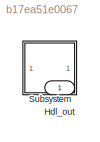
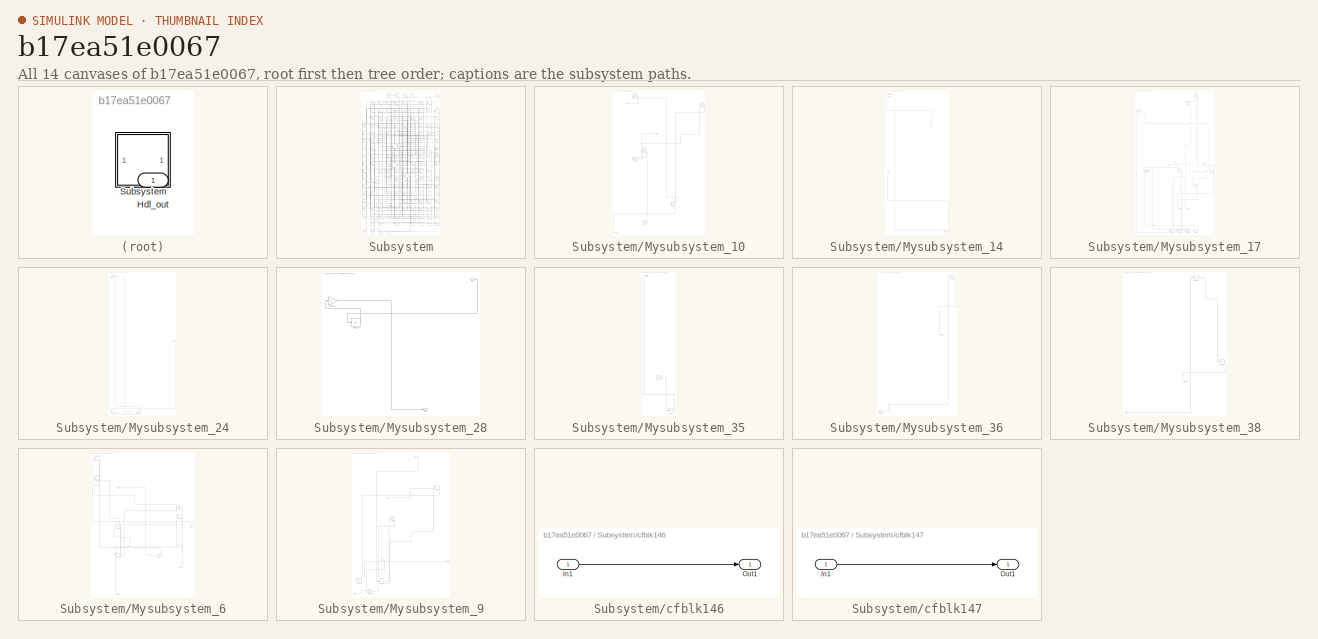
[diagram: thumbnail index - all 14 canvases of the model, root first then tree order]
MODEL slx_b17ea51e0067
KIND model
CONFIG AbsTol = auto
CONFIG EnableMultiTasking = off
CONFIG FixedStep = auto
CONFIG MaxStep = auto
CONFIG MinStep = auto
CONFIG RelTol = 1e-3
CONFIG SampleTimeConstraint = Unconstrained
CONFIG SolverName = VariableStepAuto
CONFIG StartTime = 0.0
CONFIG StopTime = 10.0
BLOCK [Outport] Hdl_out
  OutDataTypeStr = uint8
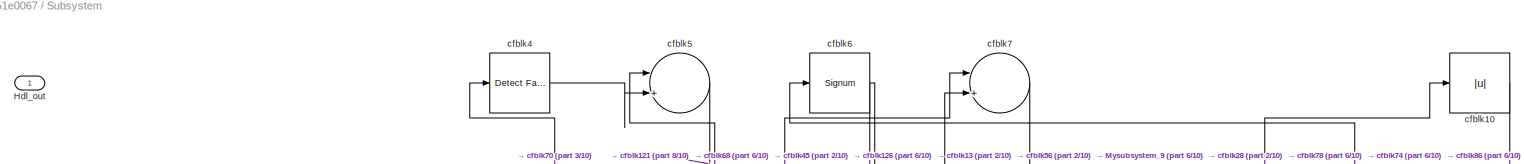
[diagram: Subsystem - part 1/10, full width, top band]
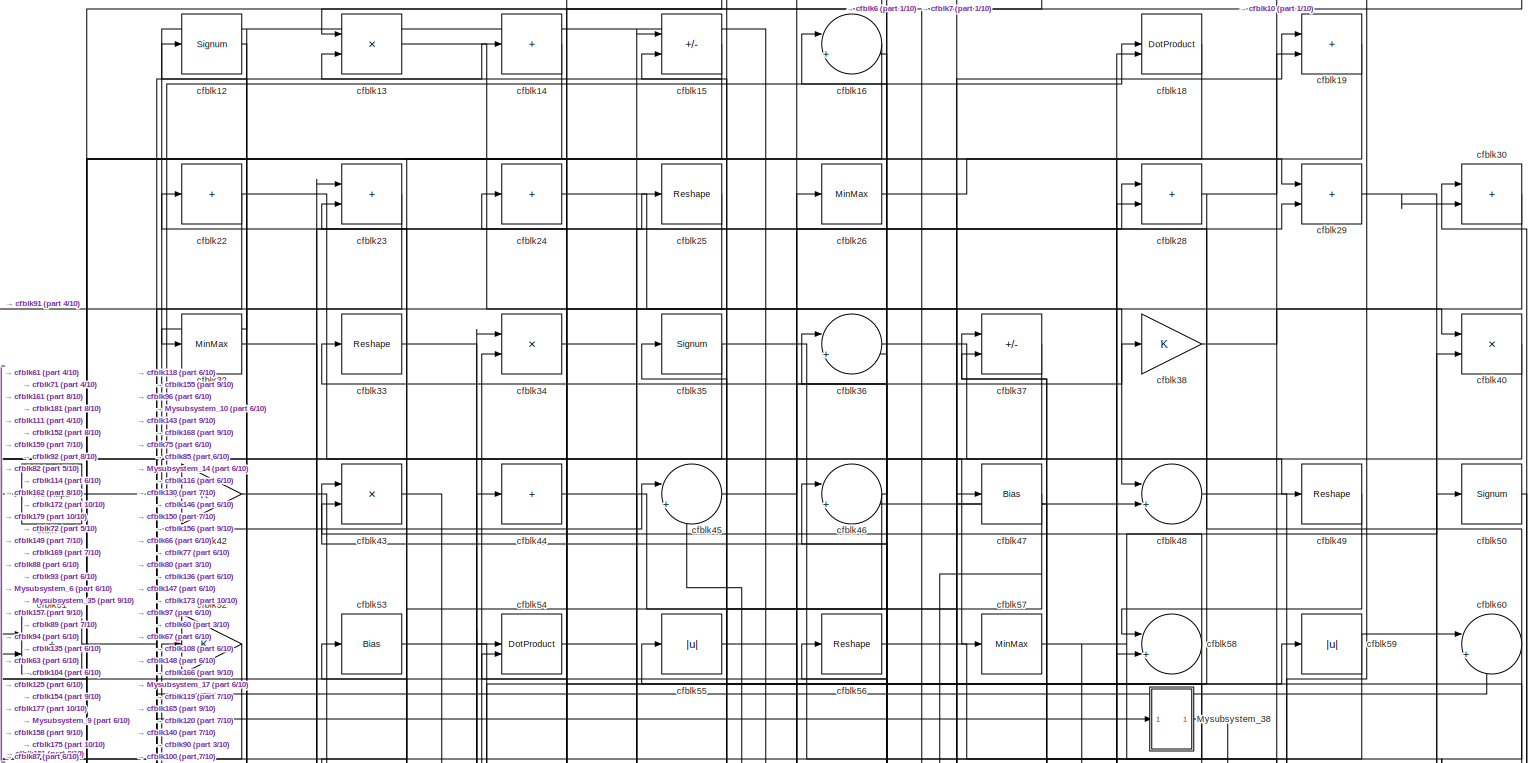
[diagram: Subsystem - part 2/10, full width, top band]
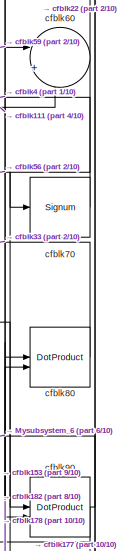
[diagram: Subsystem - part 3/10, middle right region]
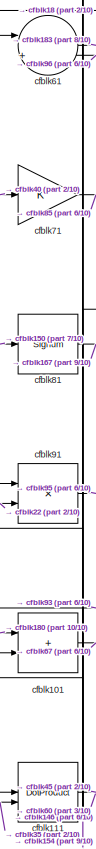
[diagram: Subsystem - part 4/10, middle left region]
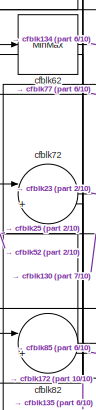
[diagram: Subsystem - part 5/10, middle left region]
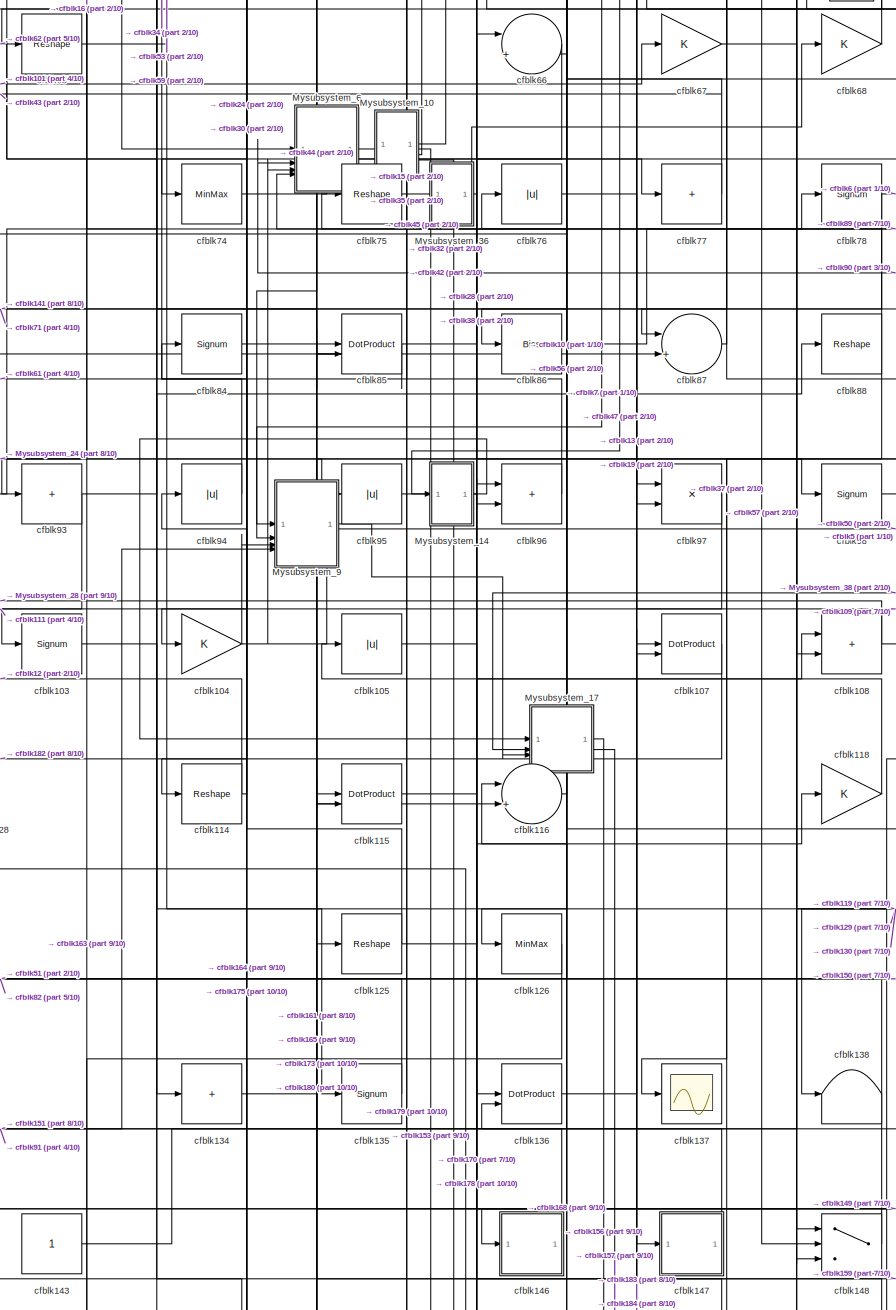
[diagram: Subsystem - part 6/10, central region]
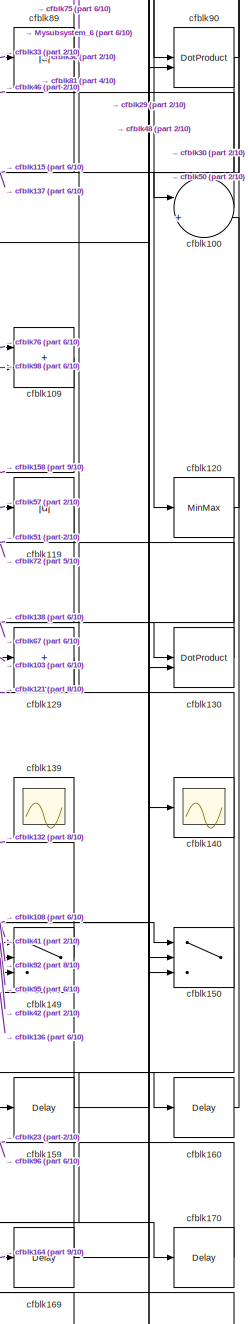
[diagram: Subsystem - part 7/10, middle right region]
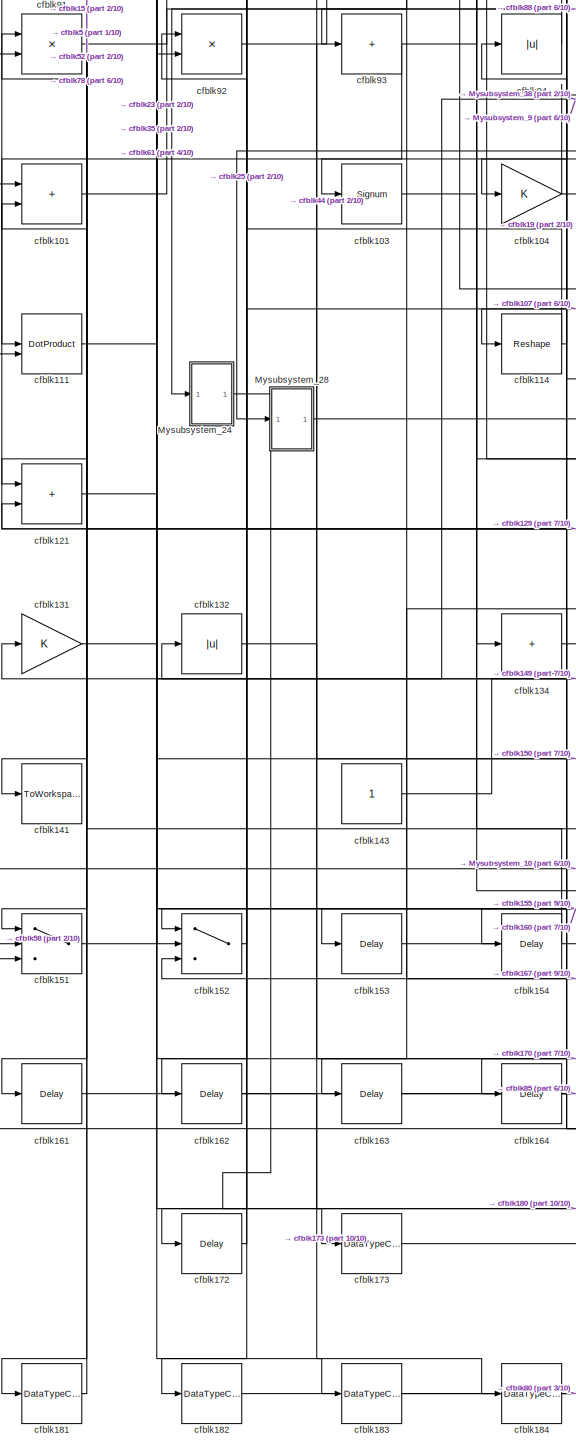
[diagram: Subsystem - part 8/10, bottom left region]
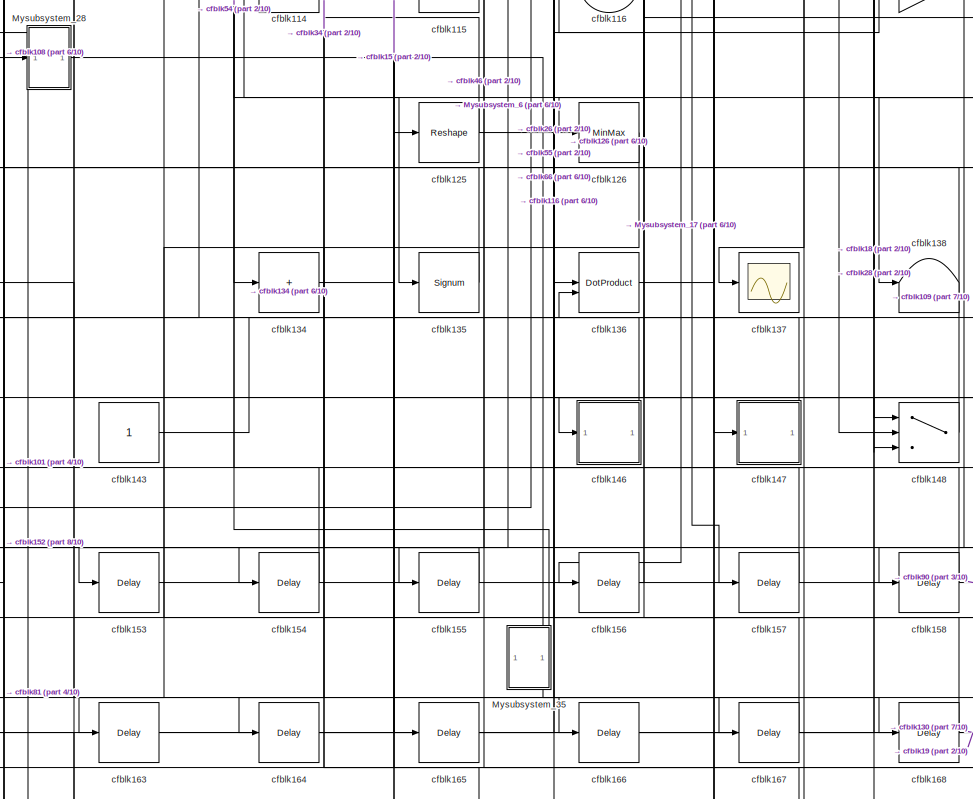
[diagram: Subsystem - part 9/10, bottom center region]
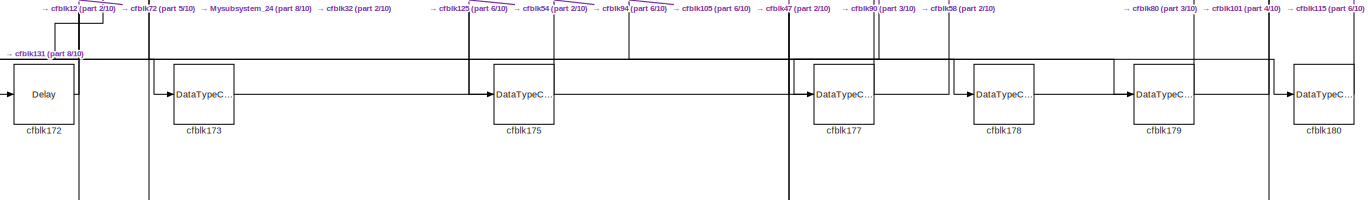
[diagram: Subsystem - part 10/10, full width, bottom band]
BLOCK [SubSystem] Subsystem
BLOCK [Outport] Subsystem/Hdl_out
  OutDataTypeStr = uint8
BLOCK [SubSystem] Subsystem/Mysubsystem_10
  RTWFcnName = Mysubsystem_10
  RTWFcnNameOpts = User specified
  RTWFileNameOpts = Use function name
  RTWSystemCode = Reusable function
  TreatAsAtomicUnit = on
BLOCK [Outport] Subsystem/Mysubsystem_10/Out2
  Port = 2
BLOCK [Outport] Subsystem/Mysubsystem_10/Out3
  Port = 3
BLOCK [Gain] Subsystem/Mysubsystem_10/cfblk127
BLOCK [Reference] Subsystem/Mysubsystem_10/cfblk144  REF=hdlsllib/Sources/Counter
Limited
  SourceBlock = hdlsllib/Sources/Counter\nLimited
  SourceType = Counter Limited
BLOCK [Reshape] Subsystem/Mysubsystem_10/cfblk20
BLOCK [Reference] Subsystem/Mysubsystem_10/cfblk3  REF=hdlsllib/Logic and Bit
Operations/Compare
To Zero
  SourceBlock = hdlsllib/Logic and Bit\nOperations/Compare\nTo Zero
  SourceType = Compare To Zero
BLOCK [Reshape] Subsystem/Mysubsystem_10/cfblk64
BLOCK [MinMax] Subsystem/Mysubsystem_10/cfblk73
BLOCK [Outport] Subsystem/Mysubsystem_10/y
BLOCK [SubSystem] Subsystem/Mysubsystem_14
  RTWFcnName = Mysubsystem_14
  RTWFcnNameOpts = User specified
  RTWFileNameOpts = Use function name
  RTWSystemCode = Reusable function
  TreatAsAtomicUnit = on
BLOCK [Outport] Subsystem/Mysubsystem_14/Out1
BLOCK [Inport] Subsystem/Mysubsystem_14/U
BLOCK [DataTypeConversion] Subsystem/Mysubsystem_14/cfblk189
  OutDataTypeStr = uint8
  RndMeth = Floor
  SaturateOnIntegerOverflow = off
BLOCK [Reference] Subsystem/Mysubsystem_14/cfblk2  REF=hdlsllib/Logic and Bit
Operations/Detect Fall
Nonpositive
  SourceBlock = hdlsllib/Logic and Bit\nOperations/Detect Fall\nNonpositive
  SourceType = Detect Fall Nonpositive
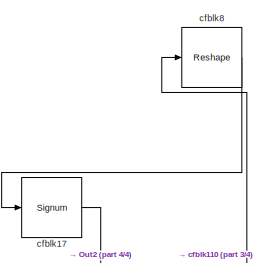
[diagram: Subsystem/Mysubsystem_17 - part 1/4, top right region]
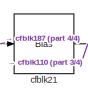
[diagram: Subsystem/Mysubsystem_17 - part 2/4, top left region]
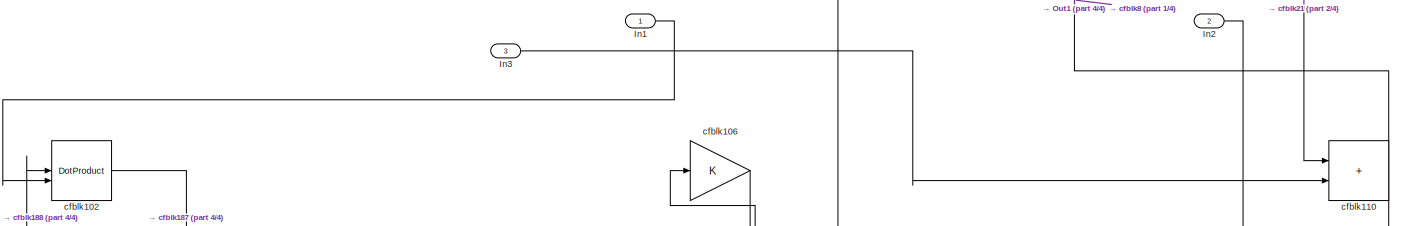
[diagram: Subsystem/Mysubsystem_17 - part 3/4, full width, middle band]
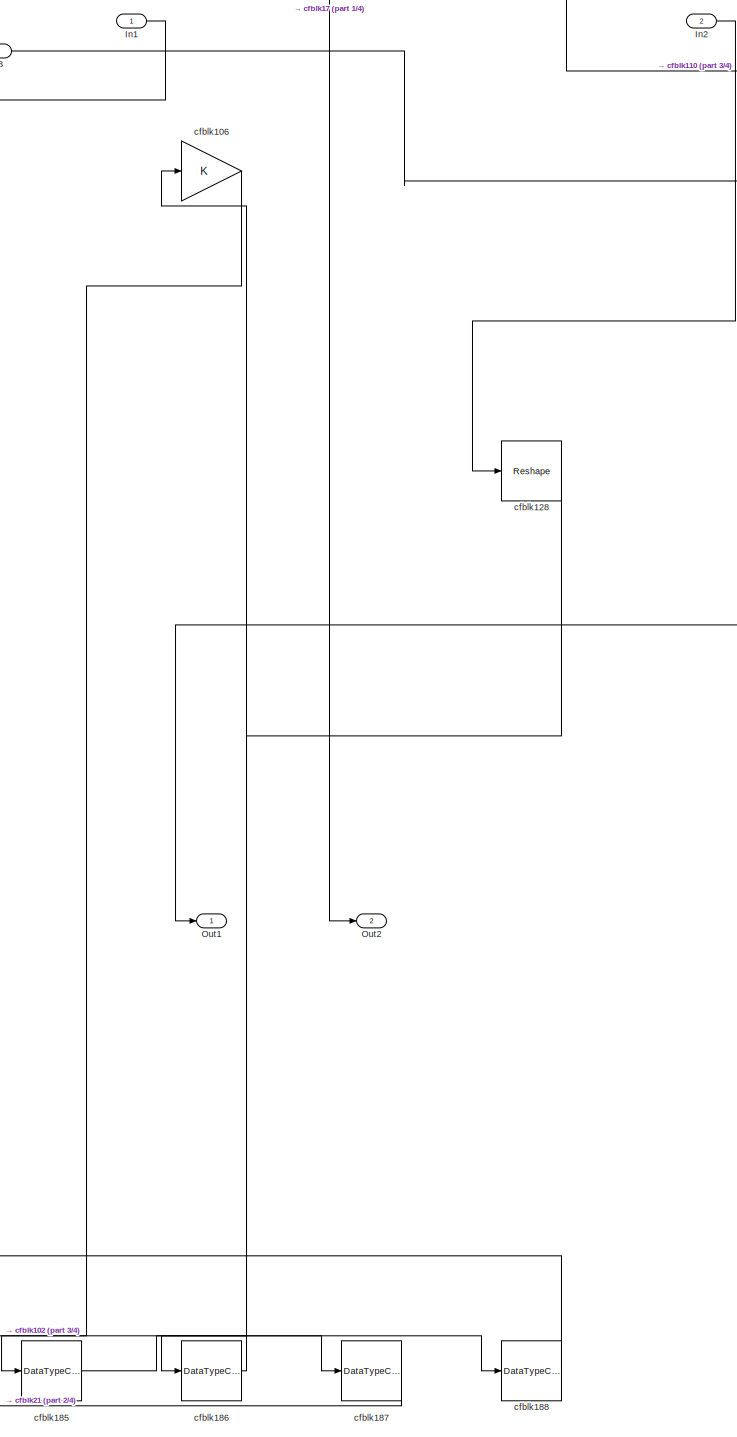
[diagram: Subsystem/Mysubsystem_17 - part 4/4, bottom center region]
BLOCK [SubSystem] Subsystem/Mysubsystem_17
  RTWFcnName = Mysubsystem_17
  RTWFcnNameOpts = User specified
  RTWFileNameOpts = Use function name
  RTWSystemCode = Reusable function
  TreatAsAtomicUnit = on
BLOCK [Inport] Subsystem/Mysubsystem_17/In1
BLOCK [Inport] Subsystem/Mysubsystem_17/In2
  Port = 2
BLOCK [Inport] Subsystem/Mysubsystem_17/In3
  Port = 3
BLOCK [Outport] Subsystem/Mysubsystem_17/Out1
BLOCK [Outport] Subsystem/Mysubsystem_17/Out2
  Port = 2
BLOCK [DotProduct] Subsystem/Mysubsystem_17/cfblk102
  OutDataTypeStr = Inherit: Inherit via internal rule
BLOCK [Gain] Subsystem/Mysubsystem_17/cfblk106
BLOCK [Sum] Subsystem/Mysubsystem_17/cfblk110
  IconShape = rectangular
BLOCK [Reshape] Subsystem/Mysubsystem_17/cfblk128
BLOCK [Signum] Subsystem/Mysubsystem_17/cfblk17
BLOCK [DataTypeConversion] Subsystem/Mysubsystem_17/cfblk185
  OutDataTypeStr = uint8
  RndMeth = Floor
  SaturateOnIntegerOverflow = off
BLOCK [DataTypeConversion] Subsystem/Mysubsystem_17/cfblk186
  OutDataTypeStr = uint8
  RndMeth = Floor
  SaturateOnIntegerOverflow = off
BLOCK [DataTypeConversion] Subsystem/Mysubsystem_17/cfblk187
  OutDataTypeStr = uint8
  RndMeth = Floor
  SaturateOnIntegerOverflow = off
BLOCK [DataTypeConversion] Subsystem/Mysubsystem_17/cfblk188
  OutDataTypeStr = uint8
  RndMeth = Floor
  SaturateOnIntegerOverflow = off
BLOCK [Bias] Subsystem/Mysubsystem_17/cfblk21
  Bias = 0.0
  SaturateOnIntegerOverflow = off
BLOCK [Reshape] Subsystem/Mysubsystem_17/cfblk8
BLOCK [SubSystem] Subsystem/Mysubsystem_24
  RTWFcnName = Mysubsystem_24
  RTWFcnNameOpts = User specified
  RTWFileNameOpts = Use function name
  RTWSystemCode = Reusable function
  TreatAsAtomicUnit = on
BLOCK [Inport] Subsystem/Mysubsystem_24/In1
BLOCK [Reference] Subsystem/Mysubsystem_24/cfblk1  REF=hdlsllib/Logic and Bit
Operations/Interval Test
  SourceBlock = hdlsllib/Logic and Bit\nOperations/Interval Test
  SourceType = Interval Test
BLOCK [Delay] Subsystem/Mysubsystem_24/cfblk171
  InputPortMap = u0
  SampleTime = 1
BLOCK [DataTypeConversion] Subsystem/Mysubsystem_24/cfblk174
  OutDataTypeStr = uint8
  RndMeth = Floor
  SaturateOnIntegerOverflow = off
BLOCK [Outport] Subsystem/Mysubsystem_24/y
BLOCK [SubSystem] Subsystem/Mysubsystem_28
  RTWFcnName = Mysubsystem_28
  RTWFcnNameOpts = User specified
  RTWFileNameOpts = Use function name
  RTWSystemCode = Reusable function
  TreatAsAtomicUnit = on
BLOCK [Inport] Subsystem/Mysubsystem_28/In1
BLOCK [Outport] Subsystem/Mysubsystem_28/Out1
BLOCK [Gain] Subsystem/Mysubsystem_28/cfblk112
BLOCK [Abs] Subsystem/Mysubsystem_28/cfblk123
  SaturateOnIntegerOverflow = off
BLOCK [SubSystem] Subsystem/Mysubsystem_35
  RTWFcnName = Mysubsystem_35
  RTWFcnNameOpts = User specified
  RTWFileNameOpts = Use function name
  RTWSystemCode = Reusable function
  TreatAsAtomicUnit = on
BLOCK [Outport] Subsystem/Mysubsystem_35/Out1
BLOCK [Reference] Subsystem/Mysubsystem_35/cfblk145  REF=hdlsllib/Sources/Counter
Free-Running
  SourceBlock = hdlsllib/Sources/Counter\nFree-Running
  SourceType = Counter Free-Running
BLOCK [DataTypeConversion] Subsystem/Mysubsystem_35/cfblk176
  OutDataTypeStr = uint8
  RndMeth = Floor
  SaturateOnIntegerOverflow = off
BLOCK [SubSystem] Subsystem/Mysubsystem_36
  RTWFcnName = Mysubsystem_36
  RTWFcnNameOpts = User specified
  RTWFileNameOpts = Use function name
  RTWSystemCode = Reusable function
  TreatAsAtomicUnit = on
BLOCK [Outport] Subsystem/Mysubsystem_36/Out1
BLOCK [Reference] Subsystem/Mysubsystem_36/cfblk142  REF=hdlsllib/Sources/Counter
Limited
  SourceBlock = hdlsllib/Sources/Counter\nLimited
  SourceType = Counter Limited
BLOCK [Abs] Subsystem/Mysubsystem_36/cfblk9
  SaturateOnIntegerOverflow = off
BLOCK [SubSystem] Subsystem/Mysubsystem_38
  RTWFcnName = Mysubsystem_38
  RTWFcnNameOpts = User specified
  RTWFileNameOpts = Use function name
  RTWSystemCode = Reusable function
  TreatAsAtomicUnit = on
BLOCK [Inport] Subsystem/Mysubsystem_38/In1
BLOCK [Outport] Subsystem/Mysubsystem_38/Out1
BLOCK [Sum] Subsystem/Mysubsystem_38/cfblk27
  IconShape = rectangular
  Inputs = +
BLOCK [Abs] Subsystem/Mysubsystem_38/cfblk99
  SaturateOnIntegerOverflow = off
BLOCK [SubSystem] Subsystem/Mysubsystem_6
  RTWFcnName = Mysubsystem_6
  RTWFcnNameOpts = User specified
  RTWFileNameOpts = Use function name
  RTWSystemCode = Reusable function
  TreatAsAtomicUnit = on
BLOCK [Inport] Subsystem/Mysubsystem_6/In1
BLOCK [Inport] Subsystem/Mysubsystem_6/In2
  Port = 2
BLOCK [Inport] Subsystem/Mysubsystem_6/In3
  Port = 3
BLOCK [Inport] Subsystem/Mysubsystem_6/In4
  Port = 4
BLOCK [Outport] Subsystem/Mysubsystem_6/Out1
BLOCK [Product] Subsystem/Mysubsystem_6/cfblk11
  Inputs = */
  RndMeth = Zero
  SaturateOnIntegerOverflow = on
BLOCK [Sum] Subsystem/Mysubsystem_6/cfblk113
  Inputs = |++
BLOCK [MinMax] Subsystem/Mysubsystem_6/cfblk117
BLOCK [Sum] Subsystem/Mysubsystem_6/cfblk31
  IconShape = rectangular
  Inputs = +-
BLOCK [Gain] Subsystem/Mysubsystem_6/cfblk69
BLOCK [Sum] Subsystem/Mysubsystem_6/cfblk79
  IconShape = rectangular
BLOCK [Abs] Subsystem/Mysubsystem_6/cfblk83
  SaturateOnIntegerOverflow = off
BLOCK [SubSystem] Subsystem/Mysubsystem_9
  RTWFcnName = Mysubsystem_9
  RTWFcnNameOpts = User specified
  RTWFileNameOpts = Use function name
  RTWSystemCode = Reusable function
  TreatAsAtomicUnit = on
BLOCK [Inport] Subsystem/Mysubsystem_9/In1
BLOCK [Inport] Subsystem/Mysubsystem_9/In2
  Port = 2
BLOCK [Inport] Subsystem/Mysubsystem_9/In3
  Port = 3
BLOCK [Inport] Subsystem/Mysubsystem_9/In4
  Port = 4
BLOCK [Outport] Subsystem/Mysubsystem_9/Out1
BLOCK [Bias] Subsystem/Mysubsystem_9/cfblk122
  Bias = 0.0
  SaturateOnIntegerOverflow = off
BLOCK [Sum] Subsystem/Mysubsystem_9/cfblk124
  IconShape = rectangular
BLOCK [Product] Subsystem/Mysubsystem_9/cfblk133
  Inputs = */
  RndMeth = Zero
  SaturateOnIntegerOverflow = on
BLOCK [Sum] Subsystem/Mysubsystem_9/cfblk39
  IconShape = rectangular
BLOCK [MinMax] Subsystem/Mysubsystem_9/cfblk65
BLOCK [Abs] Subsystem/cfblk10
  OutDataTypeStr = uint8
  SaturateOnIntegerOverflow = off
BLOCK [Sum] Subsystem/cfblk100
  Inputs = |++
  OutDataTypeStr = uint8
BLOCK [Sum] Subsystem/cfblk101
  IconShape = rectangular
  OutDataTypeStr = uint8
BLOCK [Signum] Subsystem/cfblk103
BLOCK [Gain] Subsystem/cfblk104
  OutDataTypeStr = uint8
BLOCK [Abs] Subsystem/cfblk105
  OutDataTypeStr = uint8
  SaturateOnIntegerOverflow = off
BLOCK [DotProduct] Subsystem/cfblk107
  OutDataTypeStr = uint8
BLOCK [Sum] Subsystem/cfblk108
  IconShape = rectangular
  OutDataTypeStr = uint8
BLOCK [Sum] Subsystem/cfblk109
  IconShape = rectangular
  OutDataTypeStr = uint8
BLOCK [DotProduct] Subsystem/cfblk111
  OutDataTypeStr = uint8
BLOCK [Reshape] Subsystem/cfblk114
BLOCK [DotProduct] Subsystem/cfblk115
  OutDataTypeStr = uint8
BLOCK [Sum] Subsystem/cfblk116
  Inputs = |++
  OutDataTypeStr = uint8
BLOCK [Gain] Subsystem/cfblk118
  OutDataTypeStr = uint8
BLOCK [Abs] Subsystem/cfblk119
  OutDataTypeStr = uint8
  SaturateOnIntegerOverflow = off
BLOCK [Signum] Subsystem/cfblk12
BLOCK [MinMax] Subsystem/cfblk120
  OutDataTypeStr = uint8
BLOCK [Sum] Subsystem/cfblk121
  IconShape = rectangular
  OutDataTypeStr = uint8
BLOCK [Reshape] Subsystem/cfblk125
BLOCK [MinMax] Subsystem/cfblk126
  OutDataTypeStr = uint8
BLOCK [Sum] Subsystem/cfblk129
  IconShape = rectangular
  Inputs = +
  OutDataTypeStr = uint8
BLOCK [Product] Subsystem/cfblk13
  Inputs = */
  OutDataTypeStr = uint8
  RndMeth = Zero
  SaturateOnIntegerOverflow = on
BLOCK [DotProduct] Subsystem/cfblk130
  OutDataTypeStr = uint8
BLOCK [Gain] Subsystem/cfblk131
  OutDataTypeStr = uint8
BLOCK [Abs] Subsystem/cfblk132
  OutDataTypeStr = uint8
  SaturateOnIntegerOverflow = off
BLOCK [Sum] Subsystem/cfblk134
  IconShape = rectangular
  Inputs = +
  OutDataTypeStr = uint8
BLOCK [Signum] Subsystem/cfblk135
BLOCK [DotProduct] Subsystem/cfblk136
  OutDataTypeStr = uint8
BLOCK [Scope] Subsystem/cfblk137
  Floating = off
  NumInputPorts = 1
  ScopeSpecificationString = Simulink.scopes.TimeScopeBlockCfg('CurrentConfiguration', extmgr.ConfigurationSet(extmgr.Configuration('Core','General UI',true),extmgr.Configuration('Core','Source UI',true),extmgr.Configuration('Sources','WiredSimulink',true,'DataLoggingVariableName','ScopeData1','DataLoggingSaveFormat','Array','DataLoggingLimitDataPoints',true,'DataLoggingDecimation','1'),extmgr.Configuration('Visuals','Time Do...<+868ch>
BLOCK [Terminator] Subsystem/cfblk138
BLOCK [Scope] Subsystem/cfblk139
  Floating = on
  NumInputPorts = 1
  ScopeSpecificationString = Simulink.scopes.TimeScopeBlockCfg('CurrentConfiguration', extmgr.ConfigurationSet(extmgr.Configuration('Core','General UI',true,'FigureColor',[0.156862745098039 0.156862745098039 0.156862745098039]),extmgr.Configuration('Core','Source UI',true),extmgr.Configuration('Sources','WiredSimulink',true,'DataLoggingVariableName','ScopeData2','DataLoggingSaveFormat','StructureWithTime','DataLoggingLimitDat...<+2713ch>
BLOCK [Sum] Subsystem/cfblk14
  IconShape = rectangular
  Inputs = +
  OutDataTypeStr = uint8
BLOCK [Scope] Subsystem/cfblk140
  Floating = off
  NumInputPorts = 1
  ScopeSpecificationString = Simulink.scopes.TimeScopeBlockCfg('CurrentConfiguration', extmgr.ConfigurationSet(extmgr.Configuration('Core','General UI',true),extmgr.Configuration('Core','Source UI',true),extmgr.Configuration('Sources','WiredSimulink',true,'DataLoggingSaveFormat','Array','DataLoggingLimitDataPoints',true,'DataLoggingDecimation','1'),extmgr.Configuration('Visuals','Time Domain',true,'DisplayPropertyDefaults',st...<+829ch>
BLOCK [ToWorkspace] Subsystem/cfblk141
  MaxDataPoints = inf
  SampleTime = -1
  SaveFormat = Timeseries
  VariableName = simout
BLOCK [Constant] Subsystem/cfblk143
  OutDataTypeStr = uint8
  SampleTime = -1
BLOCK [SubSystem] Subsystem/cfblk146
  LibrarySourceBlock = hdlsllib/Ports &\nSubsystems/Subsystem
BLOCK [Inport] Subsystem/cfblk146/In1
BLOCK [Outport] Subsystem/cfblk146/Out1
BLOCK [SubSystem] Subsystem/cfblk147
  LibrarySourceBlock = hdlsllib/Ports &\nSubsystems/Subsystem
BLOCK [Inport] Subsystem/cfblk147/In1
BLOCK [Outport] Subsystem/cfblk147/Out1
BLOCK [Switch] Subsystem/cfblk148
  InputSameDT = off
  OutDataTypeStr = uint8
  SaturateOnIntegerOverflow = off
BLOCK [Switch] Subsystem/cfblk149
  InputSameDT = off
  OutDataTypeStr = uint8
  SaturateOnIntegerOverflow = off
BLOCK [Sum] Subsystem/cfblk15
  IconShape = rectangular
  Inputs = +-
  OutDataTypeStr = uint8
BLOCK [Switch] Subsystem/cfblk150
  InputSameDT = off
  OutDataTypeStr = uint8
  SaturateOnIntegerOverflow = off
BLOCK [Switch] Subsystem/cfblk151
  InputSameDT = off
  OutDataTypeStr = uint8
  SaturateOnIntegerOverflow = off
BLOCK [Switch] Subsystem/cfblk152
  InputSameDT = off
  OutDataTypeStr = uint8
  SaturateOnIntegerOverflow = off
BLOCK [Delay] Subsystem/cfblk153
  InputPortMap = u0
  SampleTime = 1
BLOCK [Delay] Subsystem/cfblk154
  InputPortMap = u0
  SampleTime = 1
BLOCK [Delay] Subsystem/cfblk155
  InputPortMap = u0
  SampleTime = 1
BLOCK [Delay] Subsystem/cfblk156
  InputPortMap = u0
  SampleTime = 1
BLOCK [Delay] Subsystem/cfblk157
  InputPortMap = u0
  SampleTime = 1
BLOCK [Delay] Subsystem/cfblk158
  InputPortMap = u0
  SampleTime = 1
BLOCK [Delay] Subsystem/cfblk159
  InputPortMap = u0
  SampleTime = 1
BLOCK [Sum] Subsystem/cfblk16
  Inputs = |++
  OutDataTypeStr = uint8
BLOCK [Delay] Subsystem/cfblk160
  InputPortMap = u0
  SampleTime = 1
BLOCK [Delay] Subsystem/cfblk161
  InputPortMap = u0
  SampleTime = 1
BLOCK [Delay] Subsystem/cfblk162
  InputPortMap = u0
  SampleTime = 1
BLOCK [Delay] Subsystem/cfblk163
  InputPortMap = u0
  SampleTime = 1
BLOCK [Delay] Subsystem/cfblk164
  InputPortMap = u0
  SampleTime = 1
BLOCK [Delay] Subsystem/cfblk165
  InputPortMap = u0
  SampleTime = 1
BLOCK [Delay] Subsystem/cfblk166
  InputPortMap = u0
  SampleTime = 1
BLOCK [Delay] Subsystem/cfblk167
  InputPortMap = u0
  SampleTime = 1
BLOCK [Delay] Subsystem/cfblk168
  InputPortMap = u0
  SampleTime = 1
BLOCK [Delay] Subsystem/cfblk169
  InputPortMap = u0
  SampleTime = 1
BLOCK [Delay] Subsystem/cfblk170
  InputPortMap = u0
  SampleTime = 1
BLOCK [Delay] Subsystem/cfblk172
  InputPortMap = u0
  SampleTime = 1
BLOCK [DataTypeConversion] Subsystem/cfblk173
  OutDataTypeStr = uint8
  RndMeth = Floor
  SaturateOnIntegerOverflow = off
BLOCK [DataTypeConversion] Subsystem/cfblk175
  OutDataTypeStr = uint8
  RndMeth = Floor
  SaturateOnIntegerOverflow = off
BLOCK [DataTypeConversion] Subsystem/cfblk177
  OutDataTypeStr = uint8
  RndMeth = Floor
  SaturateOnIntegerOverflow = off
BLOCK [DataTypeConversion] Subsystem/cfblk178
  OutDataTypeStr = uint8
  RndMeth = Floor
  SaturateOnIntegerOverflow = off
BLOCK [DataTypeConversion] Subsystem/cfblk179
  OutDataTypeStr = uint8
  RndMeth = Floor
  SaturateOnIntegerOverflow = off
BLOCK [DotProduct] Subsystem/cfblk18
  OutDataTypeStr = uint8
BLOCK [DataTypeConversion] Subsystem/cfblk180
  OutDataTypeStr = uint8
  RndMeth = Floor
  SaturateOnIntegerOverflow = off
BLOCK [DataTypeConversion] Subsystem/cfblk181
  OutDataTypeStr = uint8
  RndMeth = Floor
  SaturateOnIntegerOverflow = off
BLOCK [DataTypeConversion] Subsystem/cfblk182
  OutDataTypeStr = uint8
  RndMeth = Floor
  SaturateOnIntegerOverflow = off
BLOCK [DataTypeConversion] Subsystem/cfblk183
  OutDataTypeStr = uint8
  RndMeth = Floor
  SaturateOnIntegerOverflow = off
BLOCK [DataTypeConversion] Subsystem/cfblk184
  OutDataTypeStr = uint8
  RndMeth = Floor
  SaturateOnIntegerOverflow = off
BLOCK [Sum] Subsystem/cfblk19
  IconShape = rectangular
  OutDataTypeStr = uint8
BLOCK [Sum] Subsystem/cfblk22
  IconShape = rectangular
  Inputs = +
  OutDataTypeStr = uint8
BLOCK [Sum] Subsystem/cfblk23
  IconShape = rectangular
  OutDataTypeStr = uint8
BLOCK [Sum] Subsystem/cfblk24
  IconShape = rectangular
  Inputs = +
  OutDataTypeStr = uint8
BLOCK [Reshape] Subsystem/cfblk25
BLOCK [MinMax] Subsystem/cfblk26
  OutDataTypeStr = uint8
BLOCK [Sum] Subsystem/cfblk28
  IconShape = rectangular
  OutDataTypeStr = uint8
BLOCK [Sum] Subsystem/cfblk29
  IconShape = rectangular
  OutDataTypeStr = uint8
BLOCK [Sum] Subsystem/cfblk30
  IconShape = rectangular
  OutDataTypeStr = uint8
BLOCK [MinMax] Subsystem/cfblk32
  OutDataTypeStr = uint8
BLOCK [Reshape] Subsystem/cfblk33
BLOCK [Product] Subsystem/cfblk34
  Inputs = */
  OutDataTypeStr = uint8
  RndMeth = Zero
  SaturateOnIntegerOverflow = on
BLOCK [Signum] Subsystem/cfblk35
BLOCK [Sum] Subsystem/cfblk36
  Inputs = |++
  OutDataTypeStr = uint8
BLOCK [Sum] Subsystem/cfblk37
  IconShape = rectangular
  Inputs = +-
  OutDataTypeStr = uint8
BLOCK [Gain] Subsystem/cfblk38
  OutDataTypeStr = uint8
BLOCK [Reference] Subsystem/cfblk4  REF=hdlsllib/Logic and Bit
Operations/Detect Fall
Nonpositive
  SourceBlock = hdlsllib/Logic and Bit\nOperations/Detect Fall\nNonpositive
  SourceType = Detect Fall Nonpositive
BLOCK [Product] Subsystem/cfblk40
  Inputs = */
  OutDataTypeStr = uint8
  RndMeth = Zero
  SaturateOnIntegerOverflow = on
BLOCK [Reshape] Subsystem/cfblk41
BLOCK [Gain] Subsystem/cfblk42
  OutDataTypeStr = uint8
BLOCK [Product] Subsystem/cfblk43
  Inputs = */
  OutDataTypeStr = uint8
  RndMeth = Zero
  SaturateOnIntegerOverflow = on
BLOCK [Sum] Subsystem/cfblk44
  IconShape = rectangular
  Inputs = +
  OutDataTypeStr = uint8
BLOCK [Sum] Subsystem/cfblk45
  Inputs = |++
  OutDataTypeStr = uint8
BLOCK [Sum] Subsystem/cfblk46
  Inputs = |++
  OutDataTypeStr = uint8
BLOCK [Bias] Subsystem/cfblk47
  Bias = 0.0
  SaturateOnIntegerOverflow = off
BLOCK [Sum] Subsystem/cfblk48
  Inputs = |++
  OutDataTypeStr = uint8
BLOCK [Reshape] Subsystem/cfblk49
BLOCK [Sum] Subsystem/cfblk5
  Inputs = |++
  OutDataTypeStr = uint8
BLOCK [Signum] Subsystem/cfblk50
BLOCK [Sum] Subsystem/cfblk51
  IconShape = rectangular
  OutDataTypeStr = uint8
BLOCK [Gain] Subsystem/cfblk52
  OutDataTypeStr = uint8
BLOCK [Bias] Subsystem/cfblk53
  Bias = 0.0
  SaturateOnIntegerOverflow = off
BLOCK [DotProduct] Subsystem/cfblk54
  OutDataTypeStr = uint8
BLOCK [Abs] Subsystem/cfblk55
  OutDataTypeStr = uint8
  SaturateOnIntegerOverflow = off
BLOCK [Reshape] Subsystem/cfblk56
BLOCK [MinMax] Subsystem/cfblk57
  OutDataTypeStr = uint8
BLOCK [Sum] Subsystem/cfblk58
  Inputs = |++
  OutDataTypeStr = uint8
BLOCK [Abs] Subsystem/cfblk59
  OutDataTypeStr = uint8
  SaturateOnIntegerOverflow = off
BLOCK [Signum] Subsystem/cfblk6
BLOCK [Sum] Subsystem/cfblk60
  Inputs = |++
  OutDataTypeStr = uint8
BLOCK [Sum] Subsystem/cfblk61
  Inputs = |++
  OutDataTypeStr = uint8
BLOCK [MinMax] Subsystem/cfblk62
  OutDataTypeStr = uint8
BLOCK [Reshape] Subsystem/cfblk63
BLOCK [Sum] Subsystem/cfblk66
  Inputs = |++
  OutDataTypeStr = uint8
BLOCK [Gain] Subsystem/cfblk67
  OutDataTypeStr = uint8
BLOCK [Gain] Subsystem/cfblk68
  OutDataTypeStr = uint8
BLOCK [Sum] Subsystem/cfblk7
  Inputs = |++
  OutDataTypeStr = uint8
BLOCK [Signum] Subsystem/cfblk70
BLOCK [Gain] Subsystem/cfblk71
  OutDataTypeStr = uint8
BLOCK [Sum] Subsystem/cfblk72
  Inputs = |++
  OutDataTypeStr = uint8
BLOCK [MinMax] Subsystem/cfblk74
  OutDataTypeStr = uint8
BLOCK [Reshape] Subsystem/cfblk75
BLOCK [Abs] Subsystem/cfblk76
  OutDataTypeStr = uint8
  SaturateOnIntegerOverflow = off
BLOCK [Sum] Subsystem/cfblk77
  IconShape = rectangular
  Inputs = +
  OutDataTypeStr = uint8
BLOCK [Signum] Subsystem/cfblk78
BLOCK [DotProduct] Subsystem/cfblk80
  OutDataTypeStr = uint8
BLOCK [Signum] Subsystem/cfblk81
BLOCK [Sum] Subsystem/cfblk82
  Inputs = |++
  OutDataTypeStr = uint8
BLOCK [Signum] Subsystem/cfblk84
BLOCK [DotProduct] Subsystem/cfblk85
  OutDataTypeStr = uint8
BLOCK [Bias] Subsystem/cfblk86
  Bias = 0.0
  SaturateOnIntegerOverflow = off
BLOCK [Sum] Subsystem/cfblk87
  Inputs = |++
  OutDataTypeStr = uint8
BLOCK [Reshape] Subsystem/cfblk88
BLOCK [Abs] Subsystem/cfblk89
  OutDataTypeStr = uint8
  SaturateOnIntegerOverflow = off
BLOCK [DotProduct] Subsystem/cfblk90
  OutDataTypeStr = uint8
BLOCK [Product] Subsystem/cfblk91
  Inputs = */
  OutDataTypeStr = uint8
  RndMeth = Zero
  SaturateOnIntegerOverflow = on
BLOCK [Product] Subsystem/cfblk92
  Inputs = */
  OutDataTypeStr = uint8
  RndMeth = Zero
  SaturateOnIntegerOverflow = on
BLOCK [Sum] Subsystem/cfblk93
  IconShape = rectangular
  Inputs = +
  OutDataTypeStr = uint8
BLOCK [Abs] Subsystem/cfblk94
  OutDataTypeStr = uint8
  SaturateOnIntegerOverflow = off
BLOCK [Abs] Subsystem/cfblk95
  OutDataTypeStr = uint8
  SaturateOnIntegerOverflow = off
BLOCK [Sum] Subsystem/cfblk96
  IconShape = rectangular
  OutDataTypeStr = uint8
BLOCK [Product] Subsystem/cfblk97
  Inputs = */
  OutDataTypeStr = uint8
  RndMeth = Zero
  SaturateOnIntegerOverflow = on
BLOCK [Signum] Subsystem/cfblk98
NET Subsystem/Mysubsystem_10/cfblk127:1 -> Subsystem/Mysubsystem_10/Out3:1, Subsystem/Mysubsystem_10/cfblk3:1
LINE Subsystem/Mysubsystem_10/cfblk144:1 -> Subsystem/Mysubsystem_10/cfblk64:1
LINE Subsystem/Mysubsystem_10/cfblk20:1 -> Subsystem/Mysubsystem_10/cfblk127:1
LINE Subsystem/Mysubsystem_10/cfblk3:1 -> Subsystem/Mysubsystem_10/y:1
LINE Subsystem/Mysubsystem_10/cfblk64:1 -> Subsystem/Mysubsystem_10/cfblk73:1
NET Subsystem/Mysubsystem_10/cfblk73:1 -> Subsystem/Mysubsystem_10/Out2:1, Subsystem/Mysubsystem_10/cfblk20:1
NET Subsystem/Mysubsystem_10:1 -> Subsystem/cfblk32:1, Subsystem/cfblk42:1
LINE Subsystem/Mysubsystem_10:2 -> Subsystem/cfblk45:2
LINE Subsystem/Mysubsystem_10:3 -> Subsystem/cfblk151:3
LINE Subsystem/Mysubsystem_14/U:1 -> Subsystem/Mysubsystem_14/cfblk2:1
LINE Subsystem/Mysubsystem_14/cfblk189:1 -> Subsystem/Mysubsystem_14/Out1:1
LINE Subsystem/Mysubsystem_14/cfblk2:1 -> Subsystem/Mysubsystem_14/cfblk189:1
LINE Subsystem/Mysubsystem_14:1 -> Subsystem/Mysubsystem_17:1
LINE Subsystem/Mysubsystem_17/In1:1 -> Subsystem/Mysubsystem_17/cfblk102:2
LINE Subsystem/Mysubsystem_17/In2:1 -> Subsystem/Mysubsystem_17/cfblk128:1
LINE Subsystem/Mysubsystem_17/In3:1 -> Subsystem/Mysubsystem_17/cfblk110:2
LINE Subsystem/Mysubsystem_17/cfblk102:1 -> Subsystem/Mysubsystem_17/cfblk187:1
LINE Subsystem/Mysubsystem_17/cfblk106:1 -> Subsystem/Mysubsystem_17/cfblk185:1
NET Subsystem/Mysubsystem_17/cfblk110:1 -> Subsystem/Mysubsystem_17/Out1:1, Subsystem/Mysubsystem_17/cfblk8:1
LINE Subsystem/Mysubsystem_17/cfblk128:1 -> Subsystem/Mysubsystem_17/cfblk186:1
LINE Subsystem/Mysubsystem_17/cfblk17:1 -> Subsystem/Mysubsystem_17/Out2:1
LINE Subsystem/Mysubsystem_17/cfblk185:1 -> Subsystem/Mysubsystem_17/cfblk188:1
LINE Subsystem/Mysubsystem_17/cfblk186:1 -> Subsystem/Mysubsystem_17/cfblk106:1
LINE Subsystem/Mysubsystem_17/cfblk187:1 -> Subsystem/Mysubsystem_17/cfblk21:1
LINE Subsystem/Mysubsystem_17/cfblk188:1 -> Subsystem/Mysubsystem_17/cfblk102:1
LINE Subsystem/Mysubsystem_17/cfblk21:1 -> Subsystem/Mysubsystem_17/cfblk110:1
LINE Subsystem/Mysubsystem_17/cfblk8:1 -> Subsystem/Mysubsystem_17/cfblk17:1
LINE Subsystem/Mysubsystem_17:1 -> Subsystem/cfblk156:1
LINE Subsystem/Mysubsystem_17:2 -> Subsystem/cfblk157:1
LINE Subsystem/Mysubsystem_24/In1:1 -> Subsystem/Mysubsystem_24/cfblk171:1
LINE Subsystem/Mysubsystem_24/cfblk171:1 -> Subsystem/Mysubsystem_24/cfblk174:1
LINE Subsystem/Mysubsystem_24/cfblk174:1 -> Subsystem/Mysubsystem_24/cfblk1:1
LINE Subsystem/Mysubsystem_24/cfblk1:1 -> Subsystem/Mysubsystem_24/y:1
LINE Subsystem/Mysubsystem_24:1 -> Subsystem/cfblk173:1
LINE Subsystem/Mysubsystem_28/In1:1 -> Subsystem/Mysubsystem_28/cfblk123:1
LINE Subsystem/Mysubsystem_28/cfblk112:1 -> Subsystem/Mysubsystem_28/Out1:1
LINE Subsystem/Mysubsystem_28/cfblk123:1 -> Subsystem/Mysubsystem_28/cfblk112:1
LINE Subsystem/Mysubsystem_28:1 -> Subsystem/cfblk166:1
LINE Subsystem/Mysubsystem_35/cfblk145:1 -> Subsystem/Mysubsystem_35/cfblk176:1
LINE Subsystem/Mysubsystem_35/cfblk176:1 -> Subsystem/Mysubsystem_35/Out1:1
LINE Subsystem/Mysubsystem_35:1 -> Subsystem/cfblk54:1
LINE Subsystem/Mysubsystem_36/cfblk142:1 -> Subsystem/Mysubsystem_36/cfblk9:1
LINE Subsystem/Mysubsystem_36/cfblk9:1 -> Subsystem/Mysubsystem_36/Out1:1
LINE Subsystem/Mysubsystem_36:1 -> Subsystem/cfblk68:1
LINE Subsystem/Mysubsystem_38/In1:1 -> Subsystem/Mysubsystem_38/cfblk27:1
LINE Subsystem/Mysubsystem_38/cfblk27:1 -> Subsystem/Mysubsystem_38/cfblk99:1
LINE Subsystem/Mysubsystem_38/cfblk99:1 -> Subsystem/Mysubsystem_38/Out1:1
LINE Subsystem/Mysubsystem_38:1 -> Subsystem/Mysubsystem_17:2
LINE Subsystem/Mysubsystem_6/In1:1 -> Subsystem/Mysubsystem_6/cfblk117:1
LINE Subsystem/Mysubsystem_6/In2:1 -> Subsystem/Mysubsystem_6/cfblk11:1
LINE Subsystem/Mysubsystem_6/In3:1 -> Subsystem/Mysubsystem_6/cfblk83:1
LINE Subsystem/Mysubsystem_6/In4:1 -> Subsystem/Mysubsystem_6/cfblk79:2
LINE Subsystem/Mysubsystem_6/cfblk113:1 -> Subsystem/Mysubsystem_6/cfblk69:1
LINE Subsystem/Mysubsystem_6/cfblk117:1 -> Subsystem/Mysubsystem_6/cfblk11:2
LINE Subsystem/Mysubsystem_6/cfblk11:1 -> Subsystem/Mysubsystem_6/cfblk31:1
LINE Subsystem/Mysubsystem_6/cfblk31:1 -> Subsystem/Mysubsystem_6/cfblk79:1
LINE Subsystem/Mysubsystem_6/cfblk69:1 -> Subsystem/Mysubsystem_6/Out1:1
LINE Subsystem/Mysubsystem_6/cfblk79:1 -> Subsystem/Mysubsystem_6/cfblk113:2
NET Subsystem/Mysubsystem_6/cfblk83:1 -> Subsystem/Mysubsystem_6/cfblk113:1, Subsystem/Mysubsystem_6/cfblk31:2
LINE Subsystem/Mysubsystem_6:1 -> Subsystem/cfblk153:1
LINE Subsystem/Mysubsystem_9/In1:1 -> Subsystem/Mysubsystem_9/cfblk124:2
LINE Subsystem/Mysubsystem_9/In2:1 -> Subsystem/Mysubsystem_9/cfblk39:2
LINE Subsystem/Mysubsystem_9/In3:1 -> Subsystem/Mysubsystem_9/cfblk133:2
LINE Subsystem/Mysubsystem_9/In4:1 -> Subsystem/Mysubsystem_9/cfblk133:1
LINE Subsystem/Mysubsystem_9/cfblk122:1 -> Subsystem/Mysubsystem_9/Out1:1
LINE Subsystem/Mysubsystem_9/cfblk124:1 -> Subsystem/Mysubsystem_9/cfblk39:1
LINE Subsystem/Mysubsystem_9/cfblk133:1 -> Subsystem/Mysubsystem_9/cfblk65:1
LINE Subsystem/Mysubsystem_9/cfblk39:1 -> Subsystem/Mysubsystem_9/cfblk122:1
LINE Subsystem/Mysubsystem_9/cfblk65:1 -> Subsystem/Mysubsystem_9/cfblk124:1
LINE Subsystem/Mysubsystem_9:1 -> Subsystem/Mysubsystem_17:3
LINE Subsystem/cfblk100:1 -> Subsystem/cfblk46:2
LINE Subsystem/cfblk101:1 -> Subsystem/cfblk67:1
LINE Subsystem/cfblk103:1 -> Subsystem/cfblk129:1
NET Subsystem/cfblk104:1 -> Subsystem/Mysubsystem_6:3, Subsystem/Mysubsystem_9:3, Subsystem/cfblk148:3, Subsystem/cfblk50:1
LINE Subsystem/cfblk105:1 -> Subsystem/cfblk178:1
LINE Subsystem/cfblk107:1 -> Subsystem/cfblk182:1
NET Subsystem/cfblk108:1 -> Subsystem/Mysubsystem_28:1, Subsystem/cfblk150:2
LINE Subsystem/cfblk109:1 -> Subsystem/cfblk158:1
NET Subsystem/cfblk10:1 -> Subsystem/cfblk74:1, Subsystem/cfblk86:1
NET Subsystem/cfblk111:1 -> Subsystem/cfblk45:1, Subsystem/cfblk60:2
NET Subsystem/cfblk114:1 -> Subsystem/cfblk12:1, Subsystem/cfblk84:1
LINE Subsystem/cfblk115:1 -> Subsystem/cfblk108:1
LINE Subsystem/cfblk116:1 -> Subsystem/cfblk56:1
LINE Subsystem/cfblk118:1 -> Subsystem/cfblk35:1
LINE Subsystem/cfblk119:1 -> Subsystem/cfblk138:1
NET Subsystem/cfblk120:1 -> Subsystem/cfblk149:3, Subsystem/cfblk30:1
LINE Subsystem/cfblk121:1 -> Subsystem/cfblk160:1
NET Subsystem/cfblk125:1 -> Subsystem/cfblk118:1, Subsystem/cfblk24:1
NET Subsystem/cfblk126:1 -> Subsystem/cfblk163:1, Subsystem/cfblk164:1
LINE Subsystem/cfblk129:1 -> Subsystem/cfblk121:2
LINE Subsystem/cfblk12:1 -> Subsystem/cfblk172:1
NET Subsystem/cfblk130:1 -> Subsystem/cfblk36:2, Subsystem/cfblk51:2, Subsystem/cfblk72:1
LINE Subsystem/cfblk131:1 -> Subsystem/cfblk180:1
LINE Subsystem/cfblk132:1 -> Subsystem/cfblk170:1
LINE Subsystem/cfblk134:1 -> Subsystem/cfblk165:1
LINE Subsystem/cfblk135:1 -> Subsystem/cfblk82:1
LINE Subsystem/cfblk136:1 -> Subsystem/cfblk19:1
LINE Subsystem/cfblk13:1 -> Subsystem/cfblk97:1
NET Subsystem/cfblk143:1 -> Subsystem/cfblk26:1, Subsystem/cfblk28:2
LINE Subsystem/cfblk146/In1:1 -> Subsystem/cfblk146/Out1:1
LINE Subsystem/cfblk146:1 -> Subsystem/cfblk91:1
LINE Subsystem/cfblk147/In1:1 -> Subsystem/cfblk147/Out1:1
LINE Subsystem/cfblk147:1 -> Subsystem/cfblk136:2
NET Subsystem/cfblk148:1 -> Subsystem/cfblk51:1, Subsystem/cfblk76:1
LINE Subsystem/cfblk149:1 -> Subsystem/cfblk132:1
LINE Subsystem/cfblk14:1 -> Subsystem/cfblk41:1
NET Subsystem/cfblk150:1 -> Subsystem/Mysubsystem_6:4, Subsystem/cfblk169:1, Subsystem/cfblk36:1, Subsystem/cfblk81:1
NET Subsystem/cfblk151:1 -> Subsystem/Mysubsystem_38:1, Subsystem/Mysubsystem_9:4
LINE Subsystem/cfblk152:1 -> Subsystem/cfblk92:1
LINE Subsystem/cfblk153:1 -> Subsystem/cfblk90:2
LINE Subsystem/cfblk154:1 -> Subsystem/cfblk101:2
LINE Subsystem/cfblk155:1 -> Subsystem/cfblk152:1
LINE Subsystem/cfblk156:1 -> Subsystem/cfblk46:1
LINE Subsystem/cfblk157:1 -> Subsystem/cfblk34:1
LINE Subsystem/cfblk158:1 -> Subsystem/cfblk15:1
LINE Subsystem/cfblk159:1 -> Subsystem/cfblk136:1
NET Subsystem/cfblk15:1 -> Subsystem/cfblk13:2, Subsystem/cfblk181:1
LINE Subsystem/cfblk160:1 -> Subsystem/cfblk100:2
LINE Subsystem/cfblk161:1 -> Subsystem/cfblk85:1
LINE Subsystem/cfblk162:1 -> Subsystem/cfblk184:1
LINE Subsystem/cfblk163:1 -> Subsystem/cfblk66:1
LINE Subsystem/cfblk164:1 -> Subsystem/cfblk130:2
LINE Subsystem/cfblk165:1 -> Subsystem/cfblk19:2
LINE Subsystem/cfblk166:1 -> Subsystem/cfblk18:2
LINE Subsystem/cfblk167:1 -> Subsystem/cfblk152:3
LINE Subsystem/cfblk168:1 -> Subsystem/cfblk116:1
LINE Subsystem/cfblk169:1 -> Subsystem/cfblk23:2
LINE Subsystem/cfblk16:1 -> Subsystem/cfblk93:1
LINE Subsystem/cfblk170:1 -> Subsystem/cfblk96:1
LINE Subsystem/cfblk172:1 -> Subsystem/cfblk72:2
NET Subsystem/cfblk173:1 -> Subsystem/cfblk125:1, Subsystem/cfblk47:1, Subsystem/cfblk58:2
LINE Subsystem/cfblk175:1 -> Subsystem/cfblk94:1
LINE Subsystem/cfblk177:1 -> Subsystem/cfblk54:2
LINE Subsystem/cfblk178:1 -> Subsystem/cfblk80:2
LINE Subsystem/cfblk179:1 -> Subsystem/cfblk105:1
NET Subsystem/cfblk180:1 -> Subsystem/cfblk101:1, Subsystem/cfblk115:1
LINE Subsystem/cfblk181:1 -> Subsystem/cfblk131:1
LINE Subsystem/cfblk182:1 -> Subsystem/cfblk80:1
LINE Subsystem/cfblk183:1 -> Subsystem/cfblk107:1
LINE Subsystem/cfblk184:1 -> Subsystem/cfblk107:2
LINE Subsystem/cfblk18:1 -> Subsystem/cfblk61:1
NET Subsystem/cfblk19:1 -> Subsystem/cfblk108:2, Subsystem/cfblk114:1, Subsystem/cfblk151:1
NET Subsystem/cfblk22:1 -> Subsystem/cfblk57:1, Subsystem/cfblk91:2
LINE Subsystem/cfblk23:1 -> Subsystem/cfblk152:2
LINE Subsystem/cfblk24:1 -> Subsystem/cfblk48:1
LINE Subsystem/cfblk25:1 -> Subsystem/cfblk162:1
NET Subsystem/cfblk26:1 -> Subsystem/cfblk29:1, Subsystem/cfblk48:2
NET Subsystem/cfblk28:1 -> Subsystem/cfblk10:1, Subsystem/cfblk58:1
NET Subsystem/cfblk29:1 -> Subsystem/cfblk140:1, Subsystem/cfblk30:2
LINE Subsystem/cfblk30:1 -> Subsystem/cfblk104:1
LINE Subsystem/cfblk32:1 -> Subsystem/cfblk179:1
LINE Subsystem/cfblk33:1 -> Subsystem/cfblk89:1
NET Subsystem/cfblk34:1 -> Subsystem/cfblk154:1, Subsystem/cfblk29:2, Subsystem/cfblk87:2
NET Subsystem/cfblk35:1 -> Subsystem/cfblk111:2, Subsystem/cfblk148:1, Subsystem/cfblk92:2
LINE Subsystem/cfblk36:1 -> Subsystem/cfblk49:1
LINE Subsystem/cfblk37:1 -> Subsystem/cfblk146:1
LINE Subsystem/cfblk38:1 -> Subsystem/cfblk40:1
LINE Subsystem/cfblk40:1 -> Subsystem/cfblk71:1
NET Subsystem/cfblk41:1 -> Subsystem/cfblk150:1, Subsystem/cfblk18:1
LINE Subsystem/cfblk42:1 -> Subsystem/cfblk149:2
LINE Subsystem/cfblk43:1 -> Subsystem/Mysubsystem_6:1
NET Subsystem/cfblk44:1 -> Subsystem/Mysubsystem_9:2, Subsystem/cfblk147:1
LINE Subsystem/cfblk45:1 -> Subsystem/cfblk7:1
NET Subsystem/cfblk46:1 -> Subsystem/cfblk155:1, Subsystem/cfblk16:1
NET Subsystem/cfblk47:1 -> Subsystem/Mysubsystem_14:1, Subsystem/cfblk63:1, Subsystem/cfblk66:2
LINE Subsystem/cfblk48:1 -> Subsystem/cfblk120:1
LINE Subsystem/cfblk49:1 -> Subsystem/cfblk55:1
LINE Subsystem/cfblk4:1 -> Subsystem/cfblk5:2
LINE Subsystem/cfblk50:1 -> Subsystem/cfblk100:1
NET Subsystem/cfblk51:1 -> Subsystem/cfblk14:1, Subsystem/cfblk159:1
LINE Subsystem/cfblk52:1 -> Subsystem/cfblk161:1
LINE Subsystem/cfblk53:1 -> Subsystem/cfblk135:1
LINE Subsystem/cfblk54:1 -> Subsystem/cfblk175:1
LINE Subsystem/cfblk55:1 -> Subsystem/cfblk168:1
NET Subsystem/cfblk56:1 -> Subsystem/cfblk16:2, Subsystem/cfblk7:2, Subsystem/cfblk90:1
NET Subsystem/cfblk57:1 -> Subsystem/cfblk119:1, Subsystem/cfblk148:2, Subsystem/cfblk40:2
NET Subsystem/cfblk58:1 -> Subsystem/cfblk151:2, Subsystem/cfblk43:1
NET Subsystem/cfblk59:1 -> Subsystem/cfblk60:1, Subsystem/cfblk87:1
LINE Subsystem/cfblk5:1 -> Subsystem/cfblk121:1
NET Subsystem/cfblk60:1 -> Subsystem/cfblk22:1, Subsystem/cfblk70:1
LINE Subsystem/cfblk61:1 -> Subsystem/cfblk183:1
LINE Subsystem/cfblk62:1 -> Subsystem/cfblk134:1
LINE Subsystem/cfblk63:1 -> Subsystem/cfblk59:1
LINE Subsystem/cfblk66:1 -> Subsystem/cfblk96:2
NET Subsystem/cfblk67:1 -> Subsystem/cfblk130:1, Subsystem/cfblk37:2
LINE Subsystem/cfblk68:1 -> Subsystem/cfblk5:1
NET Subsystem/cfblk6:1 -> Subsystem/cfblk126:1, Subsystem/cfblk13:1
LINE Subsystem/cfblk70:1 -> Subsystem/cfblk4:1
LINE Subsystem/cfblk71:1 -> Subsystem/cfblk85:2
LINE Subsystem/cfblk72:1 -> Subsystem/cfblk23:1
LINE Subsystem/cfblk74:1 -> Subsystem/cfblk77:1
NET Subsystem/cfblk75:1 -> Subsystem/cfblk38:1, Subsystem/cfblk97:2, Subsystem/cfblk98:1
LINE Subsystem/cfblk76:1 -> Subsystem/cfblk109:1
NET Subsystem/cfblk77:1 -> Subsystem/cfblk43:2, Subsystem/cfblk62:1
NET Subsystem/cfblk78:1 -> Subsystem/cfblk141:1, Subsystem/cfblk6:1
LINE Subsystem/cfblk7:1 -> Subsystem/Mysubsystem_9:1
LINE Subsystem/cfblk80:1 -> Subsystem/cfblk33:1
LINE Subsystem/cfblk81:1 -> Subsystem/cfblk167:1
NET Subsystem/cfblk82:1 -> Subsystem/cfblk25:1, Subsystem/cfblk52:1
LINE Subsystem/cfblk84:1 -> Subsystem/cfblk116:2
NET Subsystem/cfblk85:1 -> Subsystem/cfblk28:1, Subsystem/cfblk82:2
LINE Subsystem/cfblk86:1 -> Subsystem/cfblk78:1
LINE Subsystem/cfblk87:1 -> Subsystem/cfblk37:1
NET Subsystem/cfblk88:1 -> Subsystem/Mysubsystem_24:1, Subsystem/cfblk53:1
NET Subsystem/cfblk89:1 -> Subsystem/cfblk115:2, Subsystem/cfblk137:1, Subsystem/cfblk75:1
NET Subsystem/cfblk90:1 -> Subsystem/Mysubsystem_6:2, Subsystem/cfblk177:1
LINE Subsystem/cfblk91:1 -> Subsystem/cfblk95:1
NET Subsystem/cfblk92:1 -> Subsystem/cfblk150:3, Subsystem/cfblk44:1
NET Subsystem/cfblk93:1 -> Subsystem/cfblk111:1, Subsystem/cfblk88:1
LINE Subsystem/cfblk94:1 -> Subsystem/cfblk34:2
LINE Subsystem/cfblk95:1 -> Subsystem/cfblk149:1
NET Subsystem/cfblk96:1 -> Subsystem/cfblk15:2, Subsystem/cfblk61:2
LINE Subsystem/cfblk97:1 -> Subsystem/cfblk103:1
LINE Subsystem/cfblk98:1 -> Subsystem/cfblk109:2
note: NET lines group one-source signal fan-out (src -> all destinations, sorted); 1:1 wires keep LINE
